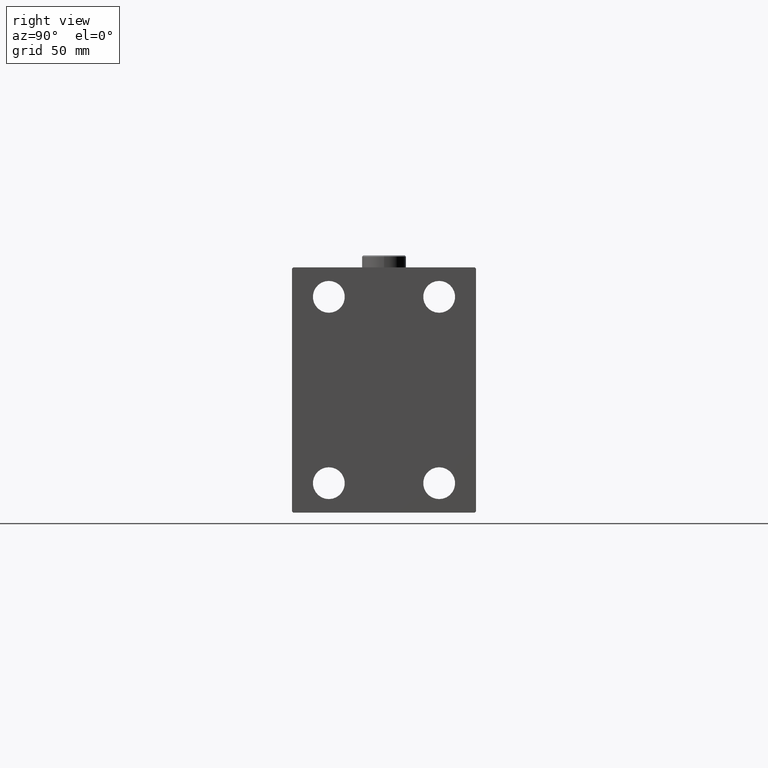
[diagram: clean part render]
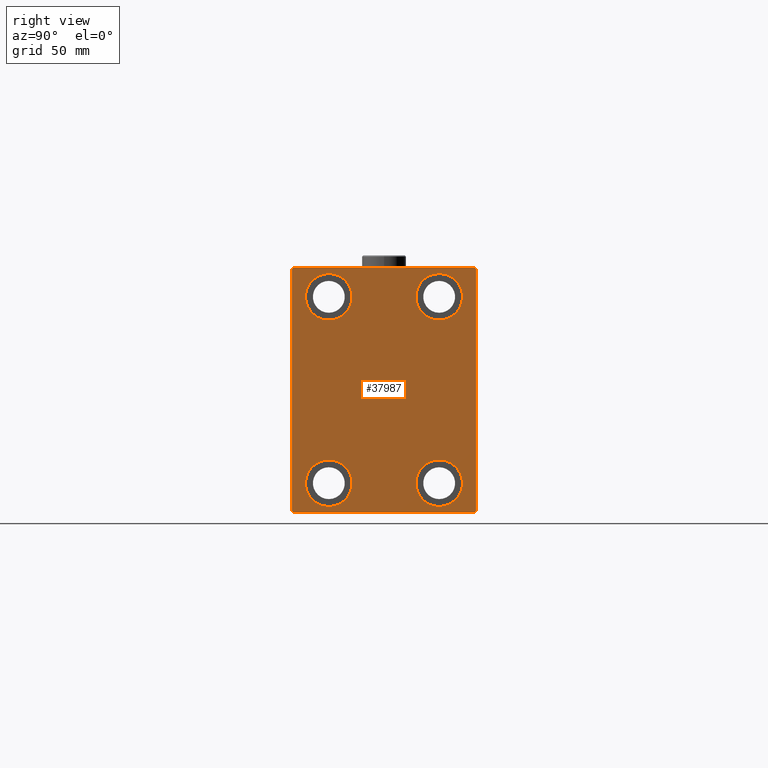
[diagram: same view with one face highlighted and labeled with its STEP entity id]
A machine part, right view. The second image highlights one B-rep face of the part: STEP entity #37987.
In plain terms, the highlighted planar face has unit normal (1, 0, 0).
Its self-contained STEP definition (entity closure, byte-faithful):
#143 = LINE ( 'NONE', #4045, #47459 ) ;
#928 = EDGE_CURVE ( 'NONE', #4287, #47888, #27348, .T. ) ;
#1163 = CARTESIAN_POINT ( 'NONE',  ( 173.0000000000000000, -22.50000000000000711, -37.99999999999999289 ) ) ;
#1297 = VECTOR ( 'NONE', #39200, 1000.000000000000114 ) ;
#1500 = CARTESIAN_POINT ( 'NONE',  ( 173.0000000000000000, -22.49999999999999645, 47.49999999999999289 ) ) ;
#1721 = VERTEX_POINT ( 'NONE', #2739 ) ;
#1818 = DIRECTION ( 'NONE',  ( -1.000000000000000000, -0.000000000000000000, -0.000000000000000000 ) ) ;
#2214 = CARTESIAN_POINT ( 'NONE',  ( 173.0000000000000000, -37.50000000000000711, 49.99999999999999289 ) ) ;
#2630 = FACE_BOUND ( 'NONE', #20332, .T. ) ;
#2739 = CARTESIAN_POINT ( 'NONE',  ( 173.0000000000000000, 22.49999999999999645, -47.49999999999999289 ) ) ;
#3201 = EDGE_CURVE ( 'NONE', #12985, #15528, #25326, .T. ) ;
#3274 = VERTEX_POINT ( 'NONE', #30410 ) ;
#3310 = VECTOR ( 'NONE', #7779, 1000.000000000000114 ) ;
#3700 = ORIENTED_EDGE ( 'NONE', *, *, #21764, .T. ) ;
#3763 = CARTESIAN_POINT ( 'NONE',  ( 173.0000000000000000, -37.00000000000000711, -50.00000000000000711 ) ) ;
#3939 = VERTEX_POINT ( 'NONE', #28333 ) ;
#4045 = CARTESIAN_POINT ( 'NONE',  ( 173.0000000000000000, -37.50000000000000711, -50.00000000000000711 ) ) ;
#4287 = VERTEX_POINT ( 'NONE', #43114 ) ;
#4407 = EDGE_LOOP ( 'NONE', ( #20287, #31017 ) ) ;
#4578 = VECTOR ( 'NONE', #25461, 1000.000000000000114 ) ;
#4720 = DIRECTION ( 'NONE',  ( 0.000000000000000000, -1.387778780781445676E-16, 1.000000000000000000 ) ) ;
#5267 = DIRECTION ( 'NONE',  ( 0.000000000000000000, 0.000000000000000000, 1.000000000000000000 ) ) ;
#5368 = LINE ( 'NONE', #13637, #1297 ) ;
#5388 = LINE ( 'NONE', #2214, #29669 ) ;
#5710 = CARTESIAN_POINT ( 'NONE',  ( 173.0000000000000000, 22.49999999999999645, -37.99999999999999289 ) ) ;
#5747 = DIRECTION ( 'NONE',  ( 0.000000000000000000, 0.000000000000000000, 1.000000000000000000 ) ) ;
#5765 = CARTESIAN_POINT ( 'NONE',  ( 173.0000000000000000, -37.50000000000000711, 49.49999999999996447 ) ) ;
#6213 = EDGE_CURVE ( 'NONE', #15022, #33806, #33828, .T. ) ;
#7779 = DIRECTION ( 'NONE',  ( 0.000000000000000000, -0.7071067811865474617, -0.7071067811865474617 ) ) ;
#7909 = ORIENTED_EDGE ( 'NONE', *, *, #11140, .T. ) ;
#8372 = LINE ( 'NONE', #11776, #32725 ) ;
#8515 = CARTESIAN_POINT ( 'NONE',  ( 173.0000000000000000, -22.50000000000000711, -37.99999999999999289 ) ) ;
#9439 = DIRECTION ( 'NONE',  ( -1.000000000000000000, -0.000000000000000000, -0.000000000000000000 ) ) ;
#9454 = LINE ( 'NONE', #13120, #38843 ) ;
#9973 = CIRCLE ( 'NONE', #22419, 9.500000000000001776 ) ;
#10127 = CARTESIAN_POINT ( 'NONE',  ( 173.0000000000000000, -36.99999999999997868, 49.99999999999999289 ) ) ;
#10517 = VERTEX_POINT ( 'NONE', #22308 ) ;
#10624 = CIRCLE ( 'NONE', #42543, 9.500000000000001776 ) ;
#11060 = EDGE_LOOP ( 'NONE', ( #13302, #24029 ) ) ;
#11140 = EDGE_CURVE ( 'NONE', #13502, #10517, #37626, .T. ) ;
#11435 = DIRECTION ( 'NONE',  ( 0.000000000000000000, 0.000000000000000000, 1.000000000000000000 ) ) ;
#11678 = DIRECTION ( 'NONE',  ( -1.000000000000000000, -0.000000000000000000, -0.000000000000000000 ) ) ;
#11776 = CARTESIAN_POINT ( 'NONE',  ( 173.0000000000000000, 37.50000000000000711, -50.00000000000000000 ) ) ;
#11859 = AXIS2_PLACEMENT_3D ( 'NONE', #25765, #20502, #31446 ) ;
#12782 = DIRECTION ( 'NONE',  ( 0.000000000000000000, 0.000000000000000000, 1.000000000000000000 ) ) ;
#12985 = VERTEX_POINT ( 'NONE', #10127 ) ;
#13118 = DIRECTION ( 'NONE',  ( 0.000000000000000000, 0.000000000000000000, -1.000000000000000000 ) ) ;
#13120 = CARTESIAN_POINT ( 'NONE',  ( 173.0000000000000000, 37.49999999999999289, 50.00000000000000711 ) ) ;
#13302 = ORIENTED_EDGE ( 'NONE', *, *, #23149, .T. ) ;
#13502 = VERTEX_POINT ( 'NONE', #43800 ) ;
#13637 = CARTESIAN_POINT ( 'NONE',  ( 173.0000000000000000, -43.50000000000000711, -43.50000000000000711 ) ) ;
#13810 = CIRCLE ( 'NONE', #17703, 9.500000000000001776 ) ;
#14469 = AXIS2_PLACEMENT_3D ( 'NONE', #8515, #11678, #11435 ) ;
#14905 = ORIENTED_EDGE ( 'NONE', *, *, #27984, .T. ) ;
#15022 = VERTEX_POINT ( 'NONE', #41720 ) ;
#15491 = DIRECTION ( 'NONE',  ( 0.000000000000000000, 1.000000000000000000, 9.251858538542970348E-17 ) ) ;
#15528 = VERTEX_POINT ( 'NONE', #5765 ) ;
#15679 = AXIS2_PLACEMENT_3D ( 'NONE', #42034, #23780, #5267 ) ;
#15790 = DIRECTION ( 'NONE',  ( 0.000000000000000000, 0.000000000000000000, 1.000000000000000000 ) ) ;
#16390 = EDGE_CURVE ( 'NONE', #10517, #13502, #41652, .T. ) ;
#16775 = FACE_BOUND ( 'NONE', #4407, .T. ) ;
#16957 = DIRECTION ( 'NONE',  ( -1.000000000000000000, -0.000000000000000000, -0.000000000000000000 ) ) ;
#17483 = DIRECTION ( 'NONE',  ( 0.000000000000000000, 0.000000000000000000, 1.000000000000000000 ) ) ;
#17498 = FACE_BOUND ( 'NONE', #39983, .T. ) ;
#17703 = AXIS2_PLACEMENT_3D ( 'NONE', #20501, #26825, #24153 ) ;
#18113 = CARTESIAN_POINT ( 'NONE',  ( 173.0000000000000000, 22.49999999999999645, -28.49999999999998934 ) ) ;
#18200 = EDGE_CURVE ( 'NONE', #1721, #30990, #10624, .T. ) ;
#18667 = AXIS2_PLACEMENT_3D ( 'NONE', #20609, #16957, #5747 ) ;
#20287 = ORIENTED_EDGE ( 'NONE', *, *, #40616, .T. ) ;
#20332 = EDGE_LOOP ( 'NONE', ( #21130, #3700 ) ) ;
#20501 = CARTESIAN_POINT ( 'NONE',  ( 173.0000000000000000, -22.49999999999999645, 37.99999999999999289 ) ) ;
#20502 = DIRECTION ( 'NONE',  ( -1.000000000000000000, -0.000000000000000000, -0.000000000000000000 ) ) ;
#20609 = CARTESIAN_POINT ( 'NONE',  ( 173.0000000000000000, 22.50000000000000355, 37.99999999999999289 ) ) ;
#21130 = ORIENTED_EDGE ( 'NONE', *, *, #18200, .T. ) ;
#21450 = EDGE_CURVE ( 'NONE', #47792, #38397, #5368, .T. ) ;
#21764 = EDGE_CURVE ( 'NONE', #30990, #1721, #9973, .T. ) ;
#22308 = CARTESIAN_POINT ( 'NONE',  ( 173.0000000000000000, -22.50000000000000711, -28.49999999999998934 ) ) ;
#22419 = AXIS2_PLACEMENT_3D ( 'NONE', #43281, #9439, #17483 ) ;
#22646 = CARTESIAN_POINT ( 'NONE',  ( 173.0000000000000000, 43.50000000000026290, 43.49999999999965894 ) ) ;
#23017 = ORIENTED_EDGE ( 'NONE', *, *, #44921, .T. ) ;
#23149 = EDGE_CURVE ( 'NONE', #3274, #44194, #13810, .T. ) ;
#23515 = ORIENTED_EDGE ( 'NONE', *, *, #34522, .T. ) ;
#23780 = DIRECTION ( 'NONE',  ( -1.000000000000000000, -0.000000000000000000, -0.000000000000000000 ) ) ;
#23786 = ORIENTED_EDGE ( 'NONE', *, *, #16390, .T. ) ;
#24029 = ORIENTED_EDGE ( 'NONE', *, *, #46995, .T. ) ;
#24153 = DIRECTION ( 'NONE',  ( 0.000000000000000000, 0.000000000000000000, 1.000000000000000000 ) ) ;
#25120 = VERTEX_POINT ( 'NONE', #31462 ) ;
#25326 = LINE ( 'NONE', #40170, #3310 ) ;
#25461 = DIRECTION ( 'NONE',  ( -0.000000000000000000, 0.7071067811865474617, 0.7071067811865474617 ) ) ;
#25765 = CARTESIAN_POINT ( 'NONE',  ( 173.0000000000000000, -22.49999999999999645, 37.99999999999999289 ) ) ;
#25940 = CARTESIAN_POINT ( 'NONE',  ( 173.0000000000000000, 43.50000000000000711, -43.50000000000000711 ) ) ;
#26825 = DIRECTION ( 'NONE',  ( -1.000000000000000000, -0.000000000000000000, -0.000000000000000000 ) ) ;
#27348 = CIRCLE ( 'NONE', #15679, 9.500000000000001776 ) ;
#27485 = DIRECTION ( 'NONE',  ( 0.000000000000000000, -1.000000000000000000, -1.850371707708594316E-16 ) ) ;
#27984 = EDGE_CURVE ( 'NONE', #38397, #3939, #143, .T. ) ;
#28298 = VECTOR ( 'NONE', #29948, 999.9999999999998863 ) ;
#28333 = CARTESIAN_POINT ( 'NONE',  ( 173.0000000000000000, 37.00000000000000711, -50.00000000000000000 ) ) ;
#28669 = AXIS2_PLACEMENT_3D ( 'NONE', #35486, #32327, #13118 ) ;
#29669 = VECTOR ( 'NONE', #30942, 1000.000000000000000 ) ;
#29948 = DIRECTION ( 'NONE',  ( -0.000000000000000000, -0.7071067811865425767, 0.7071067811865525687 ) ) ;
#30073 = ORIENTED_EDGE ( 'NONE', *, *, #21450, .T. ) ;
#30410 = CARTESIAN_POINT ( 'NONE',  ( 173.0000000000000000, -22.49999999999999645, 28.49999999999998934 ) ) ;
#30942 = DIRECTION ( 'NONE',  ( 0.000000000000000000, 0.000000000000000000, -1.000000000000000000 ) ) ;
#30990 = VERTEX_POINT ( 'NONE', #18113 ) ;
#31017 = ORIENTED_EDGE ( 'NONE', *, *, #928, .T. ) ;
#31446 = DIRECTION ( 'NONE',  ( 0.000000000000000000, 0.000000000000000000, 1.000000000000000000 ) ) ;
#31462 = CARTESIAN_POINT ( 'NONE',  ( 173.0000000000000000, 37.50000000000000711, -49.50000000000000000 ) ) ;
#31605 = PLANE ( 'NONE',  #28669 ) ;
#32327 = DIRECTION ( 'NONE',  ( 1.000000000000000000, 0.000000000000000000, 0.000000000000000000 ) ) ;
#32529 = LINE ( 'NONE', #25940, #4578 ) ;
#32725 = VECTOR ( 'NONE', #4720, 1000.000000000000000 ) ;
#33806 = VERTEX_POINT ( 'NONE', #41008 ) ;
#33828 = LINE ( 'NONE', #22646, #28298 ) ;
#34032 = DIRECTION ( 'NONE',  ( -1.000000000000000000, -0.000000000000000000, -0.000000000000000000 ) ) ;
#34522 = EDGE_CURVE ( 'NONE', #3939, #25120, #32529, .T. ) ;
#35249 = FACE_BOUND ( 'NONE', #11060, .T. ) ;
#35486 = CARTESIAN_POINT ( 'NONE',  ( 173.0000000000000000, 0.000000000000000000, 0.000000000000000000 ) ) ;
#36211 = CARTESIAN_POINT ( 'NONE',  ( 173.0000000000000000, 22.50000000000000355, 28.49999999999998934 ) ) ;
#37626 = CIRCLE ( 'NONE', #43876, 9.500000000000001776 ) ;
#37987 = ADVANCED_FACE ( 'NONE', ( #2630, #35249, #16775, #17498, #46707 ), #31605, .T. ) ;
#38397 = VERTEX_POINT ( 'NONE', #3763 ) ;
#38843 = VECTOR ( 'NONE', #27485, 1000.000000000000000 ) ;
#39200 = DIRECTION ( 'NONE',  ( -0.000000000000000000, 0.7071067811865474617, -0.7071067811865474617 ) ) ;
#39827 = ORIENTED_EDGE ( 'NONE', *, *, #3201, .T. ) ;
#39983 = EDGE_LOOP ( 'NONE', ( #7909, #23786 ) ) ;
#40170 = CARTESIAN_POINT ( 'NONE',  ( 173.0000000000000000, -43.49999999999998579, 43.49999999999998579 ) ) ;
#40214 = EDGE_CURVE ( 'NONE', #33806, #12985, #9454, .T. ) ;
#40616 = EDGE_CURVE ( 'NONE', #47888, #4287, #48196, .T. ) ;
#41008 = CARTESIAN_POINT ( 'NONE',  ( 173.0000000000000000, 36.99999999999999289, 50.00000000000000711 ) ) ;
#41599 = CARTESIAN_POINT ( 'NONE',  ( 173.0000000000000000, -37.50000000000000711, -49.50000000000000711 ) ) ;
#41652 = CIRCLE ( 'NONE', #14469, 9.500000000000001776 ) ;
#41720 = CARTESIAN_POINT ( 'NONE',  ( 173.0000000000000000, 37.49999999999999289, 49.50000000000000000 ) ) ;
#42034 = CARTESIAN_POINT ( 'NONE',  ( 173.0000000000000000, 22.50000000000000355, 37.99999999999999289 ) ) ;
#42167 = CIRCLE ( 'NONE', #11859, 9.500000000000001776 ) ;
#42543 = AXIS2_PLACEMENT_3D ( 'NONE', #5710, #1818, #12782 ) ;
#42954 = EDGE_LOOP ( 'NONE', ( #45373, #39827, #23017, #30073, #14905, #23515, #47590, #44454 ) ) ;
#42990 = EDGE_CURVE ( 'NONE', #25120, #15022, #8372, .T. ) ;
#43114 = CARTESIAN_POINT ( 'NONE',  ( 173.0000000000000000, 22.50000000000000355, 47.49999999999999289 ) ) ;
#43281 = CARTESIAN_POINT ( 'NONE',  ( 173.0000000000000000, 22.49999999999999645, -37.99999999999999289 ) ) ;
#43800 = CARTESIAN_POINT ( 'NONE',  ( 173.0000000000000000, -22.50000000000000711, -47.49999999999999289 ) ) ;
#43876 = AXIS2_PLACEMENT_3D ( 'NONE', #1163, #34032, #15790 ) ;
#44194 = VERTEX_POINT ( 'NONE', #1500 ) ;
#44454 = ORIENTED_EDGE ( 'NONE', *, *, #6213, .T. ) ;
#44921 = EDGE_CURVE ( 'NONE', #15528, #47792, #5388, .T. ) ;
#45373 = ORIENTED_EDGE ( 'NONE', *, *, #40214, .T. ) ;
#46707 = FACE_OUTER_BOUND ( 'NONE', #42954, .T. ) ;
#46995 = EDGE_CURVE ( 'NONE', #44194, #3274, #42167, .T. ) ;
#47459 = VECTOR ( 'NONE', #15491, 1000.000000000000000 ) ;
#47590 = ORIENTED_EDGE ( 'NONE', *, *, #42990, .T. ) ;
#47792 = VERTEX_POINT ( 'NONE', #41599 ) ;
#47888 = VERTEX_POINT ( 'NONE', #36211 ) ;
#48196 = CIRCLE ( 'NONE', #18667, 9.500000000000001776 ) ;